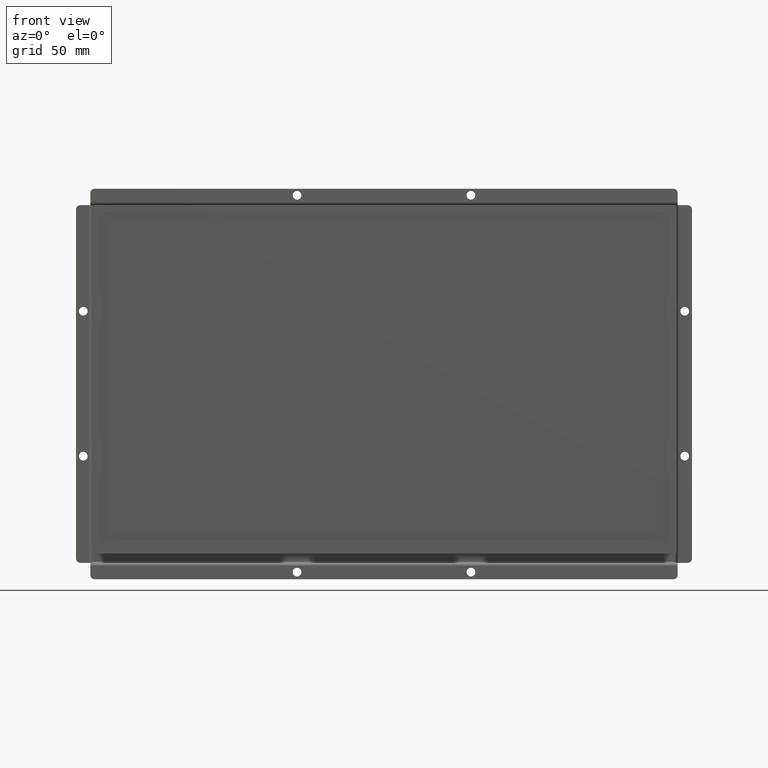
[diagram: clean part render]
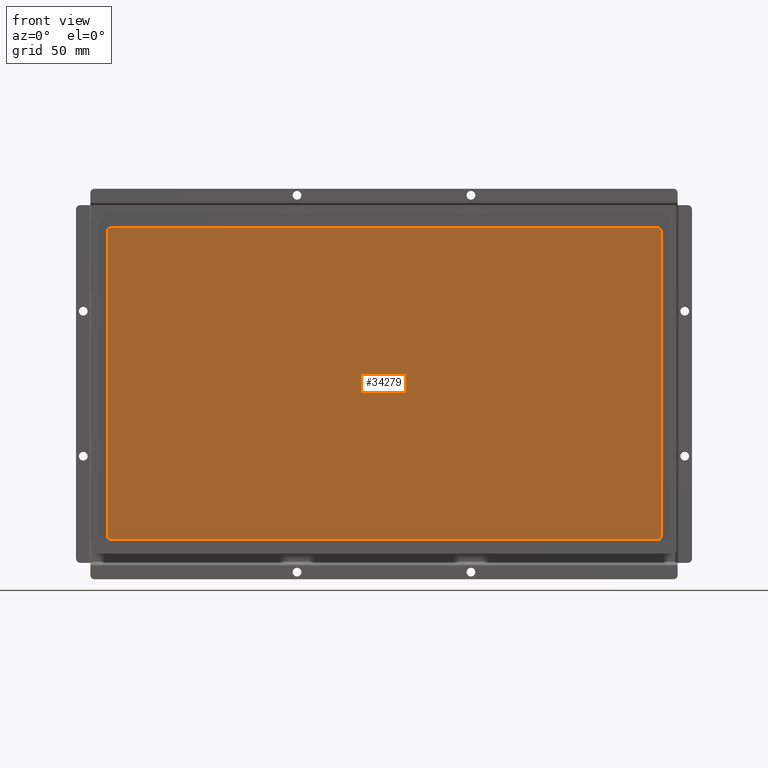
[diagram: same view with one face highlighted and labeled with its STEP entity id]
A machine part, front view. The second image highlights one B-rep face of the part: STEP entity #34279.
In plain terms, the highlighted planar face has unit normal (-0, -1, -0).
Its self-contained STEP definition (entity closure, byte-faithful):
#3192=PLANE('',#37555);
#4934=FACE_OUTER_BOUND('',#7016,.T.);
#7016=EDGE_LOOP('',(#30772,#30773,#30774,#30775,#30776,#30777,#30778,#30779));
#10008=LINE('',#58362,#13147);
#10009=LINE('',#58366,#13148);
#10010=LINE('',#58370,#13149);
#10011=LINE('',#58373,#13150);
#13147=VECTOR('',#45789,10.);
#13148=VECTOR('',#45792,10.);
#13149=VECTOR('',#45795,10.);
#13150=VECTOR('',#45798,10.);
#14702=CIRCLE('',#37536,1.99999999999999);
#14703=CIRCLE('',#37537,1.99999999999999);
#14704=CIRCLE('',#37538,2.00000000000003);
#14705=CIRCLE('',#37539,1.99999999999999);
#17567=VERTEX_POINT('',#58358);
#17568=VERTEX_POINT('',#58359);
#17569=VERTEX_POINT('',#58361);
#17570=VERTEX_POINT('',#58363);
#17571=VERTEX_POINT('',#58365);
#17572=VERTEX_POINT('',#58367);
#17573=VERTEX_POINT('',#58369);
#17574=VERTEX_POINT('',#58371);
#22030=EDGE_CURVE('',#17567,#17568,#14702,.T.);
#22031=EDGE_CURVE('',#17569,#17567,#10008,.T.);
#22032=EDGE_CURVE('',#17570,#17569,#14703,.T.);
#22033=EDGE_CURVE('',#17571,#17570,#10009,.T.);
#22034=EDGE_CURVE('',#17572,#17571,#14704,.T.);
#22035=EDGE_CURVE('',#17573,#17572,#10010,.T.);
#22036=EDGE_CURVE('',#17574,#17573,#14705,.T.);
#22037=EDGE_CURVE('',#17568,#17574,#10011,.T.);
#30772=ORIENTED_EDGE('',*,*,#22030,.T.);
#30773=ORIENTED_EDGE('',*,*,#22037,.T.);
#30774=ORIENTED_EDGE('',*,*,#22036,.T.);
#30775=ORIENTED_EDGE('',*,*,#22035,.T.);
#30776=ORIENTED_EDGE('',*,*,#22034,.T.);
#30777=ORIENTED_EDGE('',*,*,#22033,.T.);
#30778=ORIENTED_EDGE('',*,*,#22032,.T.);
#30779=ORIENTED_EDGE('',*,*,#22031,.T.);
#34279=ADVANCED_FACE('',(#4934),#3192,.T.);
#37536=AXIS2_PLACEMENT_3D('',#58360,#45787,#45788);
#37537=AXIS2_PLACEMENT_3D('',#58364,#45790,#45791);
#37538=AXIS2_PLACEMENT_3D('',#58368,#45793,#45794);
#37539=AXIS2_PLACEMENT_3D('',#58372,#45796,#45797);
#37555=AXIS2_PLACEMENT_3D('',#58417,#45847,#45848);
#45787=DIRECTION('center_axis',(0.,0.,1.));
#45788=DIRECTION('ref_axis',(-1.,0.,0.));
#45789=DIRECTION('',(0.,1.,0.));
#45790=DIRECTION('center_axis',(0.,0.,1.));
#45791=DIRECTION('ref_axis',(1.77635683940026E-14,1.,0.));
#45792=DIRECTION('',(1.,9.40144930747176E-17,0.));
#45793=DIRECTION('center_axis',(0.,0.,1.));
#45794=DIRECTION('ref_axis',(1.,0.,0.));
#45795=DIRECTION('',(1.68534804497177E-16,-1.,0.));
#45796=DIRECTION('center_axis',(0.,0.,1.));
#45797=DIRECTION('ref_axis',(0.,-1.,0.));
#45798=DIRECTION('',(-1.,-2.82043479224153E-16,0.));
#45847=DIRECTION('center_axis',(0.,0.,1.));
#45848=DIRECTION('ref_axis',(1.,0.,0.));
#58358=CARTESIAN_POINT('',(190.945,105.4,13.));
#58359=CARTESIAN_POINT('',(188.945,107.4,13.));
#58360=CARTESIAN_POINT('Origin',(188.945,105.4,13.));
#58361=CARTESIAN_POINT('',(190.945,-105.4,13.));
#58362=CARTESIAN_POINT('',(190.945,-51.175,13.));
#58363=CARTESIAN_POINT('',(188.945,-107.4,13.));
#58364=CARTESIAN_POINT('Origin',(188.945,-105.4,13.));
#58365=CARTESIAN_POINT('',(-188.945,-107.4,13.));
#58366=CARTESIAN_POINT('',(-94.4725,-107.4,13.));
#58367=CARTESIAN_POINT('',(-190.945,-105.4,13.));
#58368=CARTESIAN_POINT('Origin',(-188.945,-105.4,13.));
#58369=CARTESIAN_POINT('',(-190.945,105.4,13.));
#58370=CARTESIAN_POINT('',(-190.945,54.225,13.));
#58371=CARTESIAN_POINT('',(-188.945,107.4,13.));
#58372=CARTESIAN_POINT('Origin',(-188.945,105.4,13.));
#58373=CARTESIAN_POINT('',(94.4725,107.4,13.));
#58417=CARTESIAN_POINT('Origin',(3.5527136788005E-14,3.04999999999998,13.));